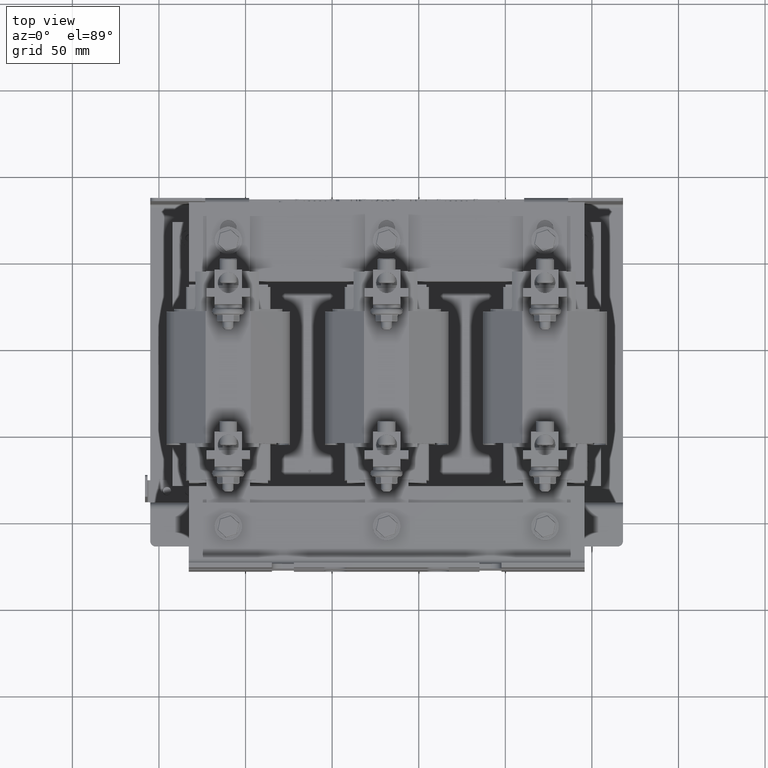
[diagram: clean part render]
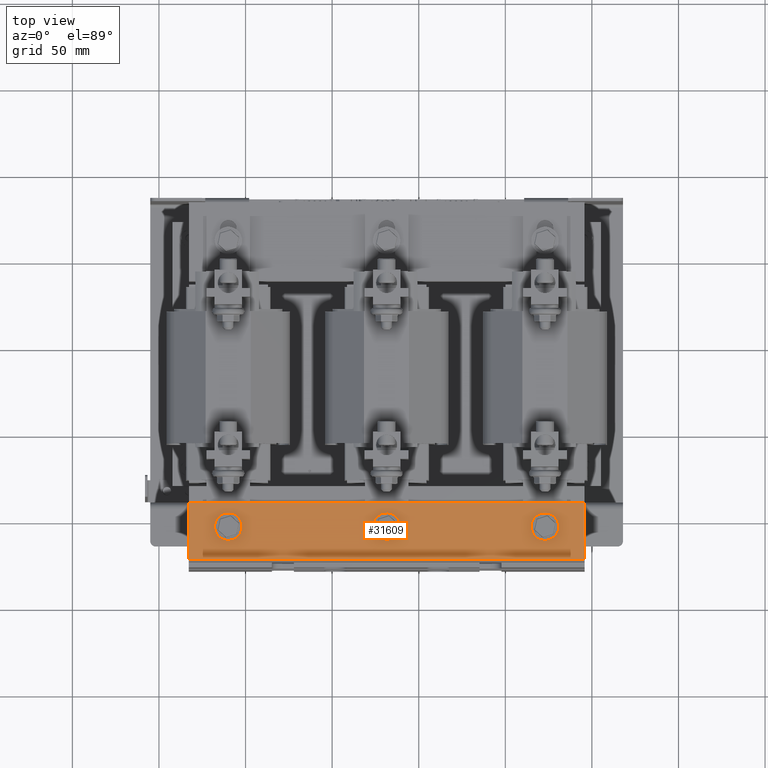
[diagram: same view with one face highlighted and labeled with its STEP entity id]
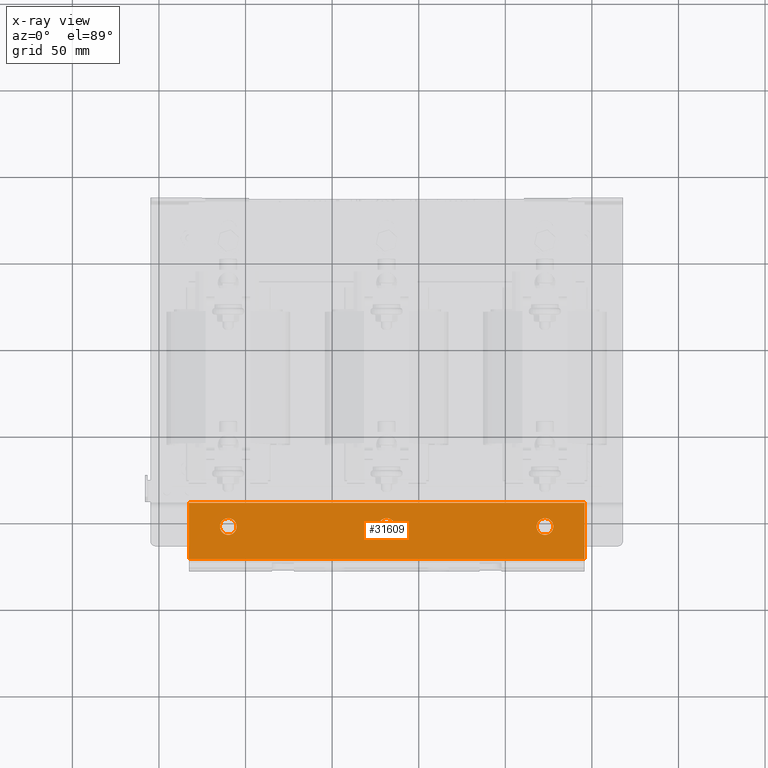
[diagram: x-ray of the same camera — body ghosted, the highlighted face saturated]
A machine part, top view. The second image highlights one B-rep face of the part: STEP entity #31609.
The next image is the same camera in x-ray: the body ghosted, the highlighted face saturated — about 0% of this face is hidden behind the body in this view.
In plain terms, the highlighted planar face has unit normal (-0, 0, 1).
Its self-contained STEP definition (entity closure, byte-faithful):
#1693=FACE_BOUND('',#5455,.T.);
#1694=FACE_BOUND('',#5456,.T.);
#1695=FACE_BOUND('',#5457,.T.);
#1972=CIRCLE('',#34218,0.19);
#1974=CIRCLE('',#34221,0.19);
#1976=CIRCLE('',#34224,0.19);
#3680=FACE_OUTER_BOUND('',#5454,.T.);
#5454=EDGE_LOOP('',(#21459,#21460,#21461,#21462));
#5455=EDGE_LOOP('',(#21463));
#5456=EDGE_LOOP('',(#21464));
#5457=EDGE_LOOP('',(#21465));
#7529=LINE('',#46330,#10619);
#7532=LINE('',#46339,#10622);
#7533=LINE('',#46342,#10623);
#7534=LINE('',#46343,#10624);
#10619=VECTOR('',#37302,0.393700787401575);
#10622=VECTOR('',#37311,0.393700787401575);
#10623=VECTOR('',#37314,0.393700787401575);
#10624=VECTOR('',#37315,0.393700787401575);
#13696=VERTEX_POINT('',#46309);
#13698=VERTEX_POINT('',#46315);
#13700=VERTEX_POINT('',#46321);
#13702=VERTEX_POINT('',#46327);
#13703=VERTEX_POINT('',#46329);
#13706=VERTEX_POINT('',#46337);
#13707=VERTEX_POINT('',#46341);
#16752=EDGE_CURVE('',#13696,#13696,#1972,.T.);
#16755=EDGE_CURVE('',#13698,#13698,#1974,.T.);
#16758=EDGE_CURVE('',#13700,#13700,#1976,.T.);
#16762=EDGE_CURVE('',#13703,#13702,#7529,.T.);
#16767=EDGE_CURVE('',#13706,#13702,#7532,.T.);
#16768=EDGE_CURVE('',#13706,#13707,#7533,.T.);
#16769=EDGE_CURVE('',#13707,#13703,#7534,.T.);
#21459=ORIENTED_EDGE('',*,*,#16768,.T.);
#21460=ORIENTED_EDGE('',*,*,#16769,.T.);
#21461=ORIENTED_EDGE('',*,*,#16762,.T.);
#21462=ORIENTED_EDGE('',*,*,#16767,.F.);
#21463=ORIENTED_EDGE('',*,*,#16752,.T.);
#21464=ORIENTED_EDGE('',*,*,#16755,.T.);
#21465=ORIENTED_EDGE('',*,*,#16758,.T.);
#30574=PLANE('',#34231);
#31609=ADVANCED_FACE('',(#3680,#1693,#1694,#1695),#30574,.T.);
#34218=AXIS2_PLACEMENT_3D('',#46310,#37279,#37280);
#34221=AXIS2_PLACEMENT_3D('',#46316,#37286,#37287);
#34224=AXIS2_PLACEMENT_3D('',#46322,#37293,#37294);
#34231=AXIS2_PLACEMENT_3D('',#46340,#37312,#37313);
#37279=DIRECTION('center_axis',(1.,5.46369598732852E-16,0.));
#37280=DIRECTION('ref_axis',(0.,0.,-1.));
#37286=DIRECTION('center_axis',(1.,5.46369598732852E-16,0.));
#37287=DIRECTION('ref_axis',(0.,0.,-1.));
#37293=DIRECTION('center_axis',(1.,5.46369598732852E-16,0.));
#37294=DIRECTION('ref_axis',(0.,0.,-1.));
#37302=DIRECTION('',(5.46369598732852E-16,-1.,0.));
#37311=DIRECTION('',(0.,0.,-1.));
#37312=DIRECTION('center_axis',(-1.,-5.46369598732852E-16,0.));
#37313=DIRECTION('ref_axis',(0.,0.,1.));
#37314=DIRECTION('',(-5.46369598732852E-16,1.,0.));
#37315=DIRECTION('',(0.,0.,-1.));
#46309=CARTESIAN_POINT('',(1.36089678142432,0.445920817198848,3.79));
#46310=CARTESIAN_POINT('Origin',(1.36089678142432,0.445920817198848,3.6));
#46315=CARTESIAN_POINT('',(1.36089678142432,0.445920817198847,0.19));
#46316=CARTESIAN_POINT('Origin',(1.36089678142432,0.445920817198847,0.));
#46321=CARTESIAN_POINT('',(1.36089678142432,0.445920817198845,-3.41));
#46322=CARTESIAN_POINT('Origin',(1.36089678142432,0.445920817198845,-3.6));
#46327=CARTESIAN_POINT('',(1.36089678142432,-0.294079182801155,-4.5));
#46329=CARTESIAN_POINT('',(1.36089678142432,0.985920817198846,-4.5));
#46330=CARTESIAN_POINT('',(1.36089678142432,-0.294079182801155,-4.5));
#46337=CARTESIAN_POINT('',(1.36089678142432,-0.294079182801155,4.5));
#46339=CARTESIAN_POINT('',(1.36089678142432,-0.294079182801155,0.));
#46340=CARTESIAN_POINT('Origin',(1.36089678142432,-0.294079182801155,0.));
#46341=CARTESIAN_POINT('',(1.36089678142432,0.985920817198846,4.5));
#46342=CARTESIAN_POINT('',(1.36089678142432,-0.294079182801155,4.5));
#46343=CARTESIAN_POINT('',(1.36089678142432,0.985920817198846,0.));